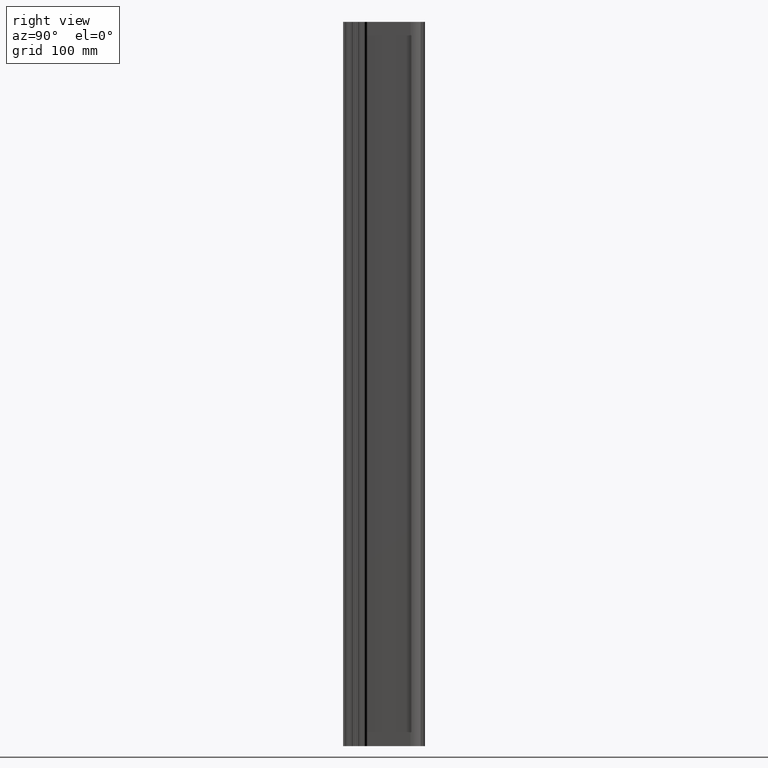
[diagram: clean part render]
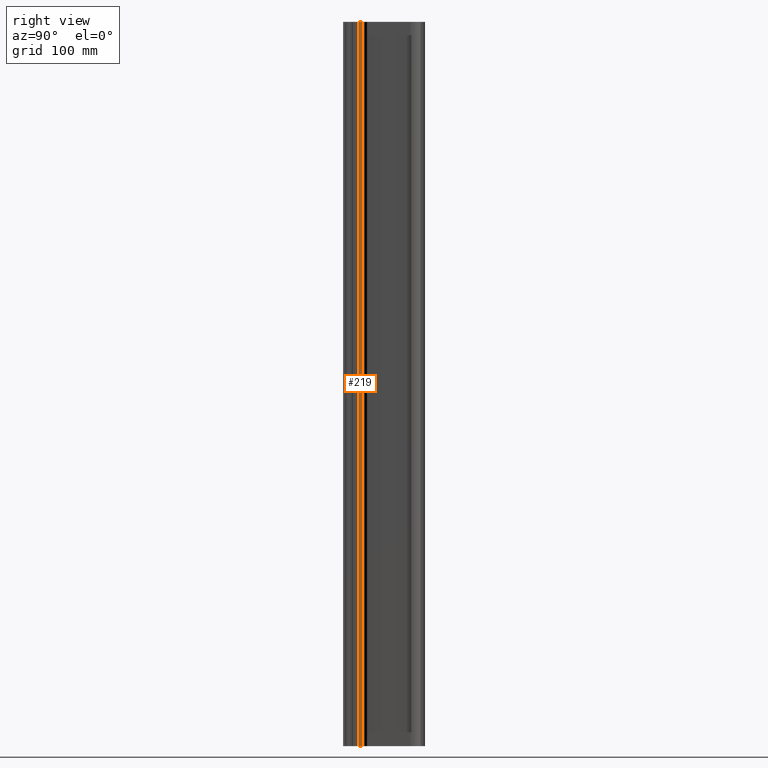
[diagram: same view with one face highlighted and labeled with its STEP entity id]
A machine part, right view. The second image highlights one B-rep face of the part: STEP entity #219.
In plain terms, the highlighted planar face has unit normal (-1, -0, 0).
Its self-contained STEP definition (entity closure, byte-faithful):
#63 = VERTEX_POINT ( 'NONE', #1834 ) ;
#219 = ADVANCED_FACE ( 'NONE', ( #1940 ), #1528, .F. ) ;
#288 = LINE ( 'NONE', #1882, #1971 ) ;
#341 = DIRECTION ( 'NONE',  ( -0.0000000000000000000, -0.0000000000000000000, -1.000000000000000000 ) ) ;
#392 = DIRECTION ( 'NONE',  ( -2.168404344971006900E-016, 1.000000000000000000, 0.0000000000000000000 ) ) ;
#492 = LINE ( 'NONE', #1181, #916 ) ;
#568 = VECTOR ( 'NONE', #341, 1000.000000000000000 ) ;
#573 = DIRECTION ( 'NONE',  ( 2.168404344971006900E-016, -1.000000000000000000, 0.0000000000000000000 ) ) ;
#707 = DIRECTION ( 'NONE',  ( -1.000000000000000000, -2.168404344971006900E-016, 0.0000000000000000000 ) ) ;
#720 = DIRECTION ( 'NONE',  ( -0.0000000000000000000, -0.0000000000000000000, -1.000000000000000000 ) ) ;
#847 = CARTESIAN_POINT ( 'NONE',  ( 5.499999999999952000, -90.99999999999998600, 500.0000000000000000 ) ) ;
#916 = VECTOR ( 'NONE', #720, 1000.000000000000000 ) ;
#975 = CARTESIAN_POINT ( 'NONE',  ( 5.499999999999951200, -86.99999999999998600, -500.0000000000000000 ) ) ;
#986 = VERTEX_POINT ( 'NONE', #2105 ) ;
#1009 = ORIENTED_EDGE ( 'NONE', *, *, #1767, .T. ) ;
#1013 = ORIENTED_EDGE ( 'NONE', *, *, #1969, .F. ) ;
#1181 = CARTESIAN_POINT ( 'NONE',  ( 5.499999999999952000, -90.99999999999998600, 500.0000000000000000 ) ) ;
#1403 = VERTEX_POINT ( 'NONE', #1503 ) ;
#1431 = LINE ( 'NONE', #1814, #568 ) ;
#1503 = CARTESIAN_POINT ( 'NONE',  ( 5.499999999999951200, -86.99999999999998600, 500.0000000000000000 ) ) ;
#1511 = EDGE_CURVE ( 'NONE', #63, #986, #492, .T. ) ;
#1528 = PLANE ( 'NONE',  #1953 ) ;
#1571 = ORIENTED_EDGE ( 'NONE', *, *, #1511, .T. ) ;
#1644 = VERTEX_POINT ( 'NONE', #975 ) ;
#1767 = EDGE_CURVE ( 'NONE', #986, #1644, #288, .T. ) ;
#1772 = VECTOR ( 'NONE', #2084, 1000.000000000000000 ) ;
#1810 = LINE ( 'NONE', #1926, #1772 ) ;
#1814 = CARTESIAN_POINT ( 'NONE',  ( 5.499999999999951200, -86.99999999999998600, 500.0000000000000000 ) ) ;
#1834 = CARTESIAN_POINT ( 'NONE',  ( 5.499999999999952000, -90.99999999999998600, 500.0000000000000000 ) ) ;
#1882 = CARTESIAN_POINT ( 'NONE',  ( 5.499999999999952000, -90.99999999999998600, -500.0000000000000000 ) ) ;
#1886 = EDGE_LOOP ( 'NONE', ( #1009, #2089, #1013, #1571 ) ) ;
#1926 = CARTESIAN_POINT ( 'NONE',  ( 5.499999999999952000, -90.99999999999998600, 500.0000000000000000 ) ) ;
#1940 = FACE_OUTER_BOUND ( 'NONE', #1886, .T. ) ;
#1953 = AXIS2_PLACEMENT_3D ( 'NONE', #847, #707, #573 ) ;
#1969 = EDGE_CURVE ( 'NONE', #63, #1403, #1810, .T. ) ;
#1971 = VECTOR ( 'NONE', #392, 1000.000000000000000 ) ;
#2080 = EDGE_CURVE ( 'NONE', #1403, #1644, #1431, .T. ) ;
#2084 = DIRECTION ( 'NONE',  ( -2.168404344971006900E-016, 1.000000000000000000, 0.0000000000000000000 ) ) ;
#2089 = ORIENTED_EDGE ( 'NONE', *, *, #2080, .F. ) ;
#2105 = CARTESIAN_POINT ( 'NONE',  ( 5.499999999999952000, -90.99999999999998600, -500.0000000000000000 ) ) ;